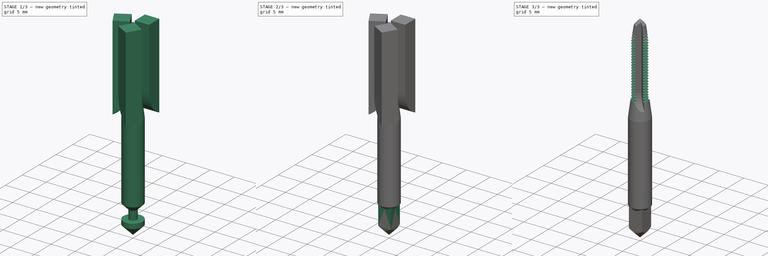
[diagram: build sequence overview — one tinted view per stage of 3, left to right]
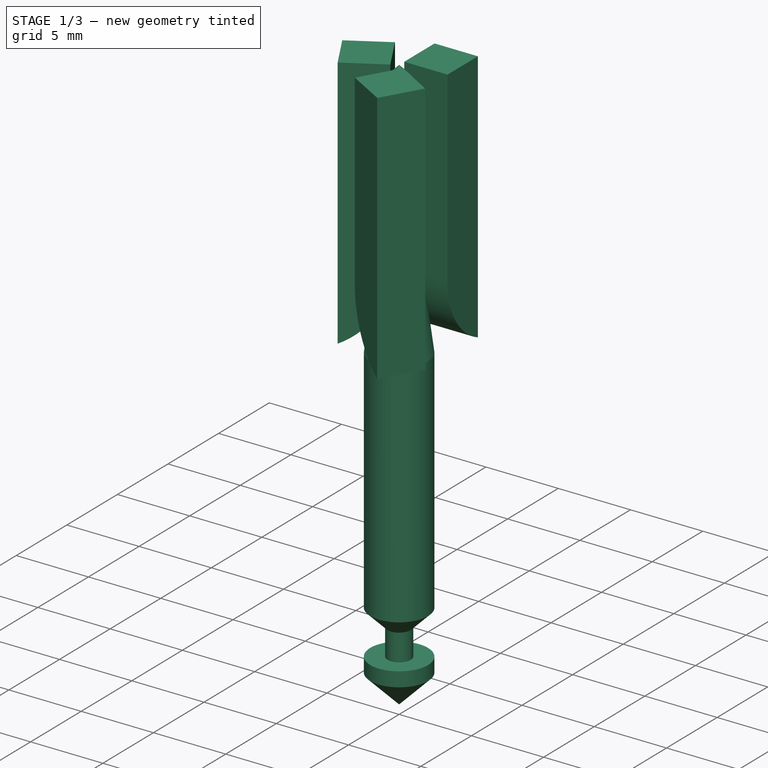
[diagram: stage 1 of 3 — iso view after this stage's code; geometry added in this stage tinted green]
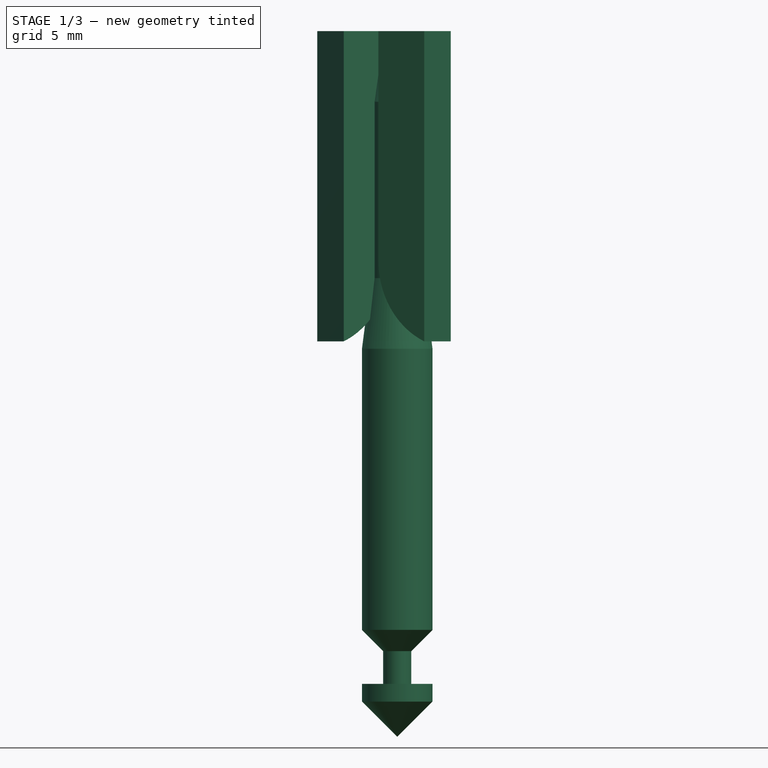
[diagram: stage 1 of 3 — front view after this stage's code; geometry added in this stage tinted green]
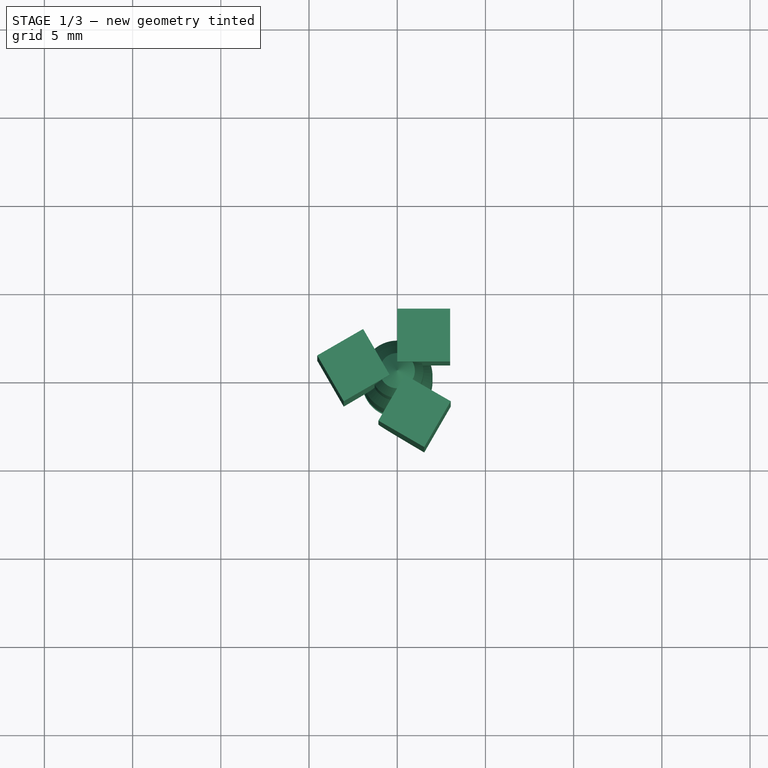
[diagram: stage 1 of 3 — top view after this stage's code; geometry added in this stage tinted green]
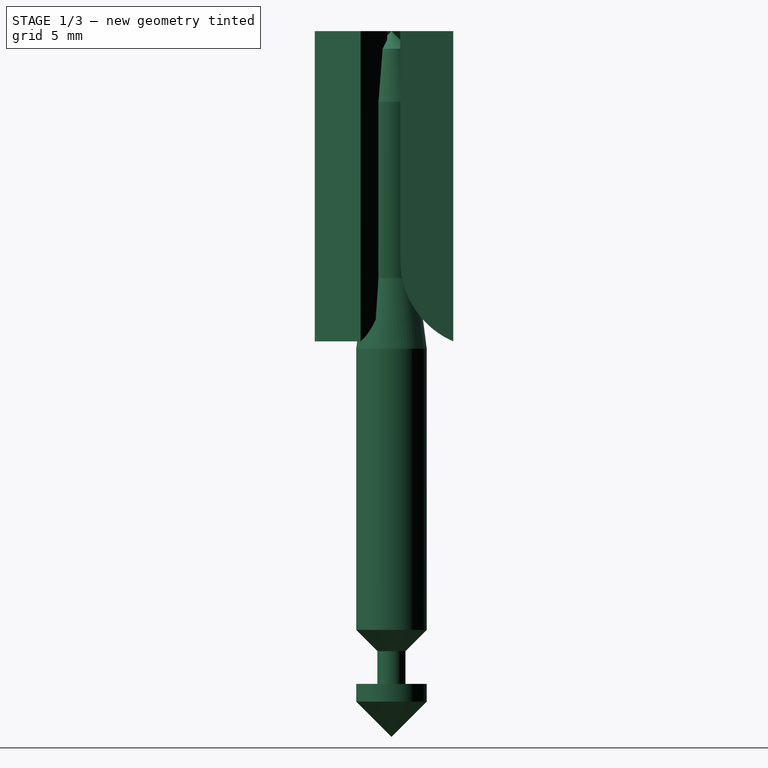
[diagram: stage 1 of 3 — right view after this stage's code; geometry added in this stage tinted green]
FCSTD DOCUMENT  (FreeCAD 0.21R30287 +2 (Git))
Label: M3-Gewindebohrer
License: All rights reserved
LicenseURL: http://en.wikipedia.org/wiki/All_rights_reserved
objects: Sketcher::SketchObject×4, Part::FeaturePython×2, PartDesign::Pad×2, PartDesign::Body×2, PartDesign::Revolution×1, PartDesign::Pocket×1, PartDesign::Boolean×1, Part::Cut×1
note: 17 computed .brp shape members not serialized (recipe doc carries the construction recipe); baked Part::Feature solids carry a one-line shape summary decoded from their .brp

FEATURE [Sketcher::SketchObject] Sketch
  FullyConstrained = false
  MapMode = 5
  Placement = pos=(0,0,0) rot=(0.57735,0.57735,0.57735;2.0944rad)
  Support = -> [YZ_Plane]
  sketch-geometry (11):
    g0: LineSegment StartX=0 StartY=40 StartZ=0 EndX=1 EndY=39 EndZ=0
    g1: LineSegment StartX=1 StartY=39 StartZ=0 EndX=1.48 EndY=36 EndZ=0
    g2: LineSegment StartX=2 StartY=2 StartZ=0 EndX=0 EndY=0 EndZ=0
    g3: LineSegment StartX=0 StartY=0 StartZ=0 EndX=0 EndY=40 EndZ=0
    g4: LineSegment StartX=1.48 StartY=36 StartZ=0 EndX=1.48 EndY=26 EndZ=0
    g5: LineSegment StartX=1.48 StartY=26 StartZ=0 EndX=2 EndY=22 EndZ=0
    g6: LineSegment StartX=2 StartY=22 StartZ=0 EndX=2 EndY=6.06215 EndZ=0
    g7: LineSegment StartX=2 StartY=6.06215 StartZ=0 EndX=0.797259 EndY=4.8594 EndZ=0
    g8: LineSegment StartX=2 StartY=3 StartZ=0 EndX=2 EndY=2 EndZ=0
    g9: LineSegment StartX=0.797259 StartY=4.8594 StartZ=0 EndX=0.797259 EndY=3 EndZ=0
    g10: LineSegment StartX=0.797259 StartY=3 StartZ=0 EndX=2 EndY=3 EndZ=0
  constraints (30):
    c: PointOnObject(g0,g-2)
    c: Coincident(g0,g1)
    c: Coincident(g1,g4)
    c: Coincident(g8,g2)
    c: Coincident(g2,g-1)
    c: Coincident(g2,g3)
    c: Coincident(g3,g0)
    c: DistanceY(g3,g3) = 40
    c: Angle(g3,g0) = 0.785398
    c: DistanceX(g0,g0) = 1
    c: DistanceY(g1,g0) = 4
    c: Coincident(g4,g5)
    c: Vertical(g4)
    c: Coincident(g5,g6)
    c: DistanceX(g2,g4) = 1.48
    c: DistanceY(g4,g4) = 10
    c: DistanceY(g5,g4) = 4
    c: Coincident(g7,g9)
    c: Coincident(g6,g7)
    c: Vertical(g6)
    c: DistanceX(g2,g6) = 2
    c: Angle(g6,g7) = 2.35619
    c: DistanceX(g2,g2) = 2
    c: Vertical(g8)
    c: Coincident(g9,g10)
    c: Vertical(g9)
    c: Horizontal(g10)
    c: DistanceY(g-1,g8) = 3
    c: Coincident(g10,g8)
    c: Parallel(g7,g2)
FEATURE [PartDesign::Revolution] Revolution
  Angle = 360
  Axis = (-2e-16,3e-16,1)
  Base = (0,0,0)
  Placement = pos=(0,0,0) rot=(0.57735,0.57735,0.57735;2.0944rad)
  Profile = -> Sketch
  ReferenceAxis = -> Sketch [V_Axis]
  Refine = true
  Reversed = true
FEATURE [PartDesign::Body] Body
  Group = -> [Sketch,Revolution,Sketch002,Pocket001,Sketch003,Pad,Boolean]
  Origin = -> Origin
  Tip = -> Boolean
FEATURE [Sketcher::SketchObject] Sketch004
  FullyConstrained = true
  MapMode = 5
  Placement = pos=(0,0,0) rot=(0.57735,0.57735,0.57735;2.0944rad)
  Support = -> [YZ_Plane001]
  sketch-geometry (4):
    g0: LineSegment StartX=0.5 StartY=40 StartZ=0 EndX=0.5 EndY=27 EndZ=0
    g1: ArcOfCircle CenterX=5.5 CenterY=27 CenterZ=0 NormalX=0 NormalY=0 NormalZ=1 AngleXU=0 Radius=5 StartAngle=3.14159 EndAngle=4.30087
    g2: LineSegment StartX=3.5 StartY=22.4174 StartZ=0 EndX=3.5 EndY=40 EndZ=0
    g3: LineSegment StartX=3.5 StartY=40 StartZ=0 EndX=0.5 EndY=40 EndZ=0
  constraints (12):
    c: Tangent(g0,g1) = -1.5708
    c: Coincident(g1,g2)
    c: Vertical(g2)
    c: Coincident(g2,g3)
    c: Coincident(g3,g0)
    c: Horizontal(g3)
    c: DistanceY(g-1,g0) = 40
    c: DistanceX(g3,g3) = 3
    c: Radius(g1) = 5
    c: DistanceY(g0,g0) = 13
    c: Vertical(g0)
    c: DistanceX(g-1,g0) = 0.5
FEATURE [PartDesign::Pad] Pad001
  Direction = (1,-2e-16,3e-16)
  Length = 3
  Length2 = 10
  Placement = pos=(0,0,0) rot=(0.57735,0.57735,0.57735;2.0944rad)
  Profile = -> Sketch004
  ReferenceAxis = -> Sketch004 [N_Axis]
  Refine = true
  Type = 0
FEATURE [PartDesign::Body] Body001  label="Ausschnitt"
  Group = -> [Sketch004,Pad001]
  Origin = -> Origin001
  Tip = -> Pad001
FEATURE [Part::FeaturePython] Array  # Draft array (typed FeaturePython)
  AlwaysSyncPlacement = false
  Angle = 360
  ArrayType = 1
  Axis = (0,0,1)
  Base = -> Body001
  Center = (0,0,0)
  Count = 3
  ExpandArray = false
  Fuse = false
  IntervalAxis = (0,0,0)
  IntervalX = (50,0,0)
  IntervalY = (0,50,0)
  IntervalZ = (0,0,50)
  NumberCircles = 3
  NumberPolar = 3
  NumberX = 2
  NumberY = 2
  NumberZ = 1
  PlacementList = 3 placements: [(0,0,0),(0,0,0),(0,0,0)]
  RadialDistance = 50
  ScaleList = (3) [(1,1,1),(1,1,1),(1,1,1)]
  Symmetry = 1
  TangentialDistance = 25
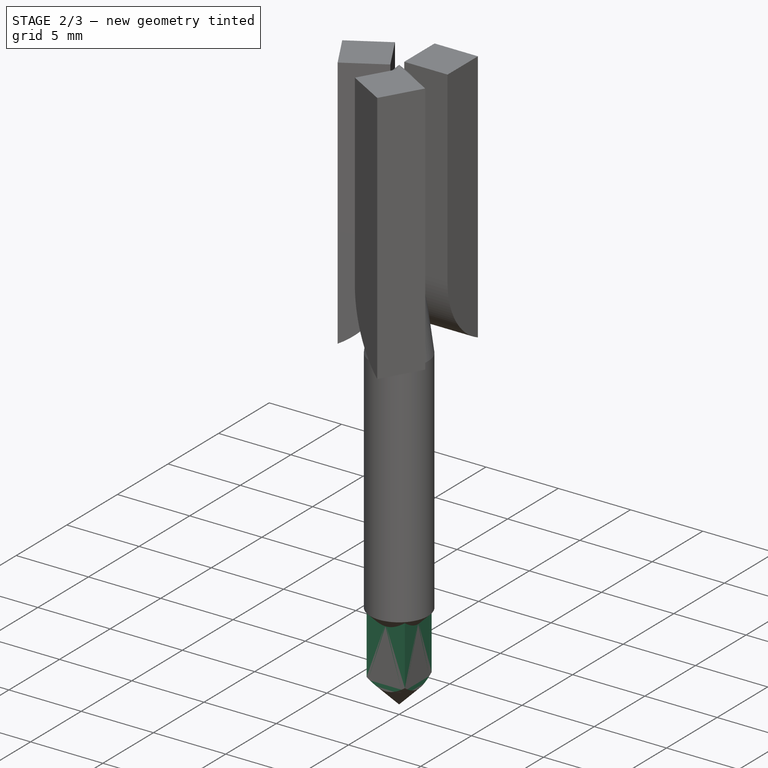
[diagram: stage 2 of 3 — iso view after this stage's code; geometry added in this stage tinted green]
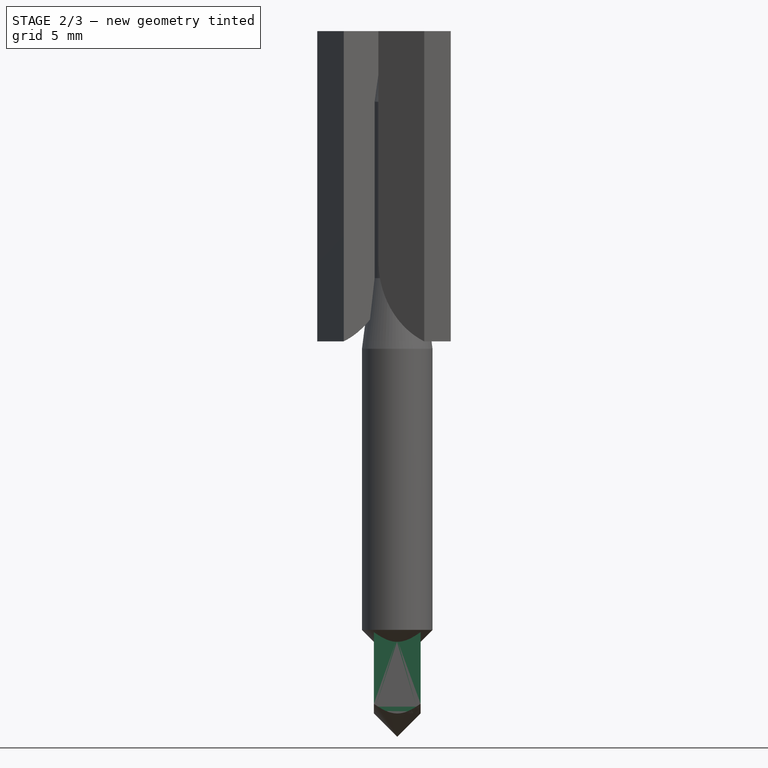
[diagram: stage 2 of 3 — front view after this stage's code; geometry added in this stage tinted green]
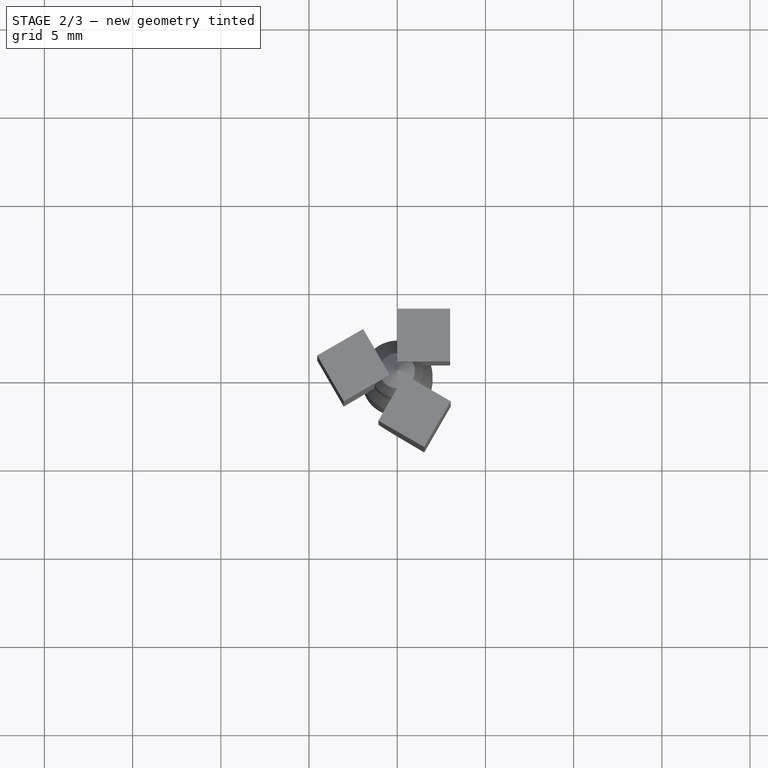
[diagram: stage 2 of 3 — top view after this stage's code; geometry added in this stage tinted green]
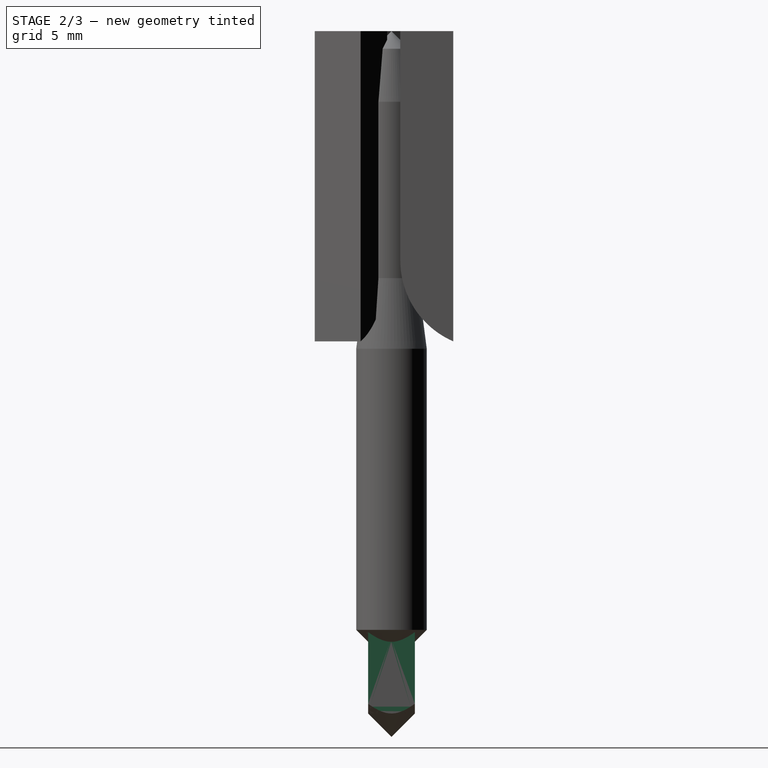
[diagram: stage 2 of 3 — right view after this stage's code; geometry added in this stage tinted green]
FEATURE [Sketcher::SketchObject] Sketch002
  AttachmentOffset = pos=(0,0,3) rot=(0,0,1;0rad)
  FullyConstrained = true
  MapMode = 5
  Placement = pos=(0,0,3) rot=(0,0,1;0rad)
  Support = -> [XY_Plane]
  sketch-geometry (6):
    g0: LineSegment StartX=-1.325 StartY=1.325 StartZ=0 EndX=-1.325 EndY=-1.325 EndZ=0
    g1: LineSegment StartX=-1.325 StartY=-1.325 StartZ=0 EndX=1.325 EndY=-1.325 EndZ=0
    g2: LineSegment StartX=1.325 StartY=-1.325 StartZ=0 EndX=1.325 EndY=1.325 EndZ=0
    g3: LineSegment StartX=1.325 StartY=1.325 StartZ=0 EndX=-1.325 EndY=1.325 EndZ=0
    g4: GeomPoint X=0 Y=0 Z=0
    g5: Circle CenterX=0 CenterY=0 CenterZ=0 NormalX=0 NormalY=0 NormalZ=1 AngleXU=0 Radius=5
  constraints (14):
    c: Coincident(g0,g1)
    c: Coincident(g1,g2)
    c: Coincident(g2,g3)
    c: Coincident(g3,g0)
    c: Horizontal(g1)
    c: Horizontal(g3)
    c: Vertical(g0)
    c: Vertical(g2)
    c: Symmetric(g1,g0,g4)
    c: Coincident(g4,g-1)
    c: Equal(g1,g2)
    c: DistanceX(g1,g1) = 2.65
    c: Coincident(g5,g4)
    c: Diameter(g5) = 10
FEATURE [PartDesign::Pocket] Pocket001
  BaseFeature = -> Revolution
  Direction = (0,0,-1)
  Inverse = false
  Length = 5
  Length2 = 5
  Placement = pos=(0,0,0) rot=(0.57735,0.57735,0.57735;2.0944rad)
  Profile = -> Sketch002
  ReferenceAxis = -> Sketch002 [N_Axis]
  Refine = true
  Type = 0
FEATURE [Sketcher::SketchObject] Sketch003
  AttachmentOffset = pos=(0,0,3) rot=(0,0,1;0rad)
  FullyConstrained = true
  MapMode = 5
  Placement = pos=(0,0,3) rot=(0,0,1;0rad)
  Support = -> [XY_Plane]
  sketch-geometry (5):
    g0: LineSegment StartX=-1.325 StartY=1.325 StartZ=0 EndX=-1.325 EndY=-1.325 EndZ=0
    g1: LineSegment StartX=-1.325 StartY=-1.325 StartZ=0 EndX=1.325 EndY=-1.325 EndZ=0
    g2: LineSegment StartX=1.325 StartY=-1.325 StartZ=0 EndX=1.325 EndY=1.325 EndZ=0
    g3: LineSegment StartX=1.325 StartY=1.325 StartZ=0 EndX=-1.325 EndY=1.325 EndZ=0
    g4: GeomPoint X=0 Y=0 Z=0
  constraints (12):
    c: Coincident(g0,g1)
    c: Coincident(g1,g2)
    c: Coincident(g2,g3)
    c: Coincident(g3,g0)
    c: Horizontal(g1)
    c: Horizontal(g3)
    c: Vertical(g0)
    c: Vertical(g2)
    c: Symmetric(g1,g0,g4)
    c: Coincident(g4,g-1)
    c: Equal(g2,g1)
    c: DistanceX(g1,g1) = 2.65
FEATURE [PartDesign::Pad] Pad
  BaseFeature = -> Pocket001
  Direction = (0,0,1)
  Length = 10
  Length2 = 10
  Placement = pos=(0,0,0) rot=(0.57735,0.57735,0.57735;2.0944rad)
  Profile = -> Sketch003
  ReferenceAxis = -> Sketch003 [N_Axis]
  Refine = true
  Type = 0
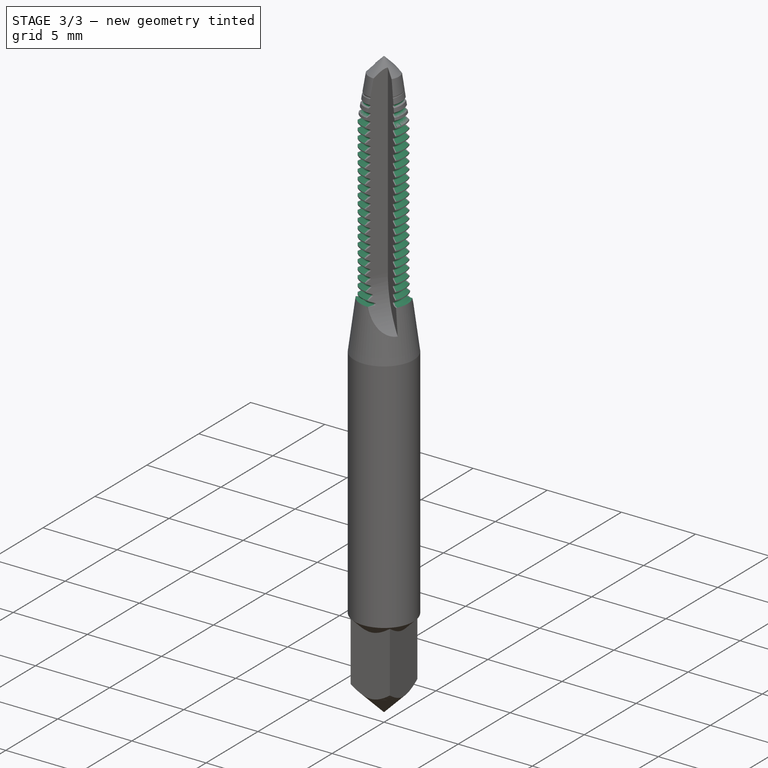
[diagram: stage 3 of 3 — iso view after this stage's code; geometry added in this stage tinted green]
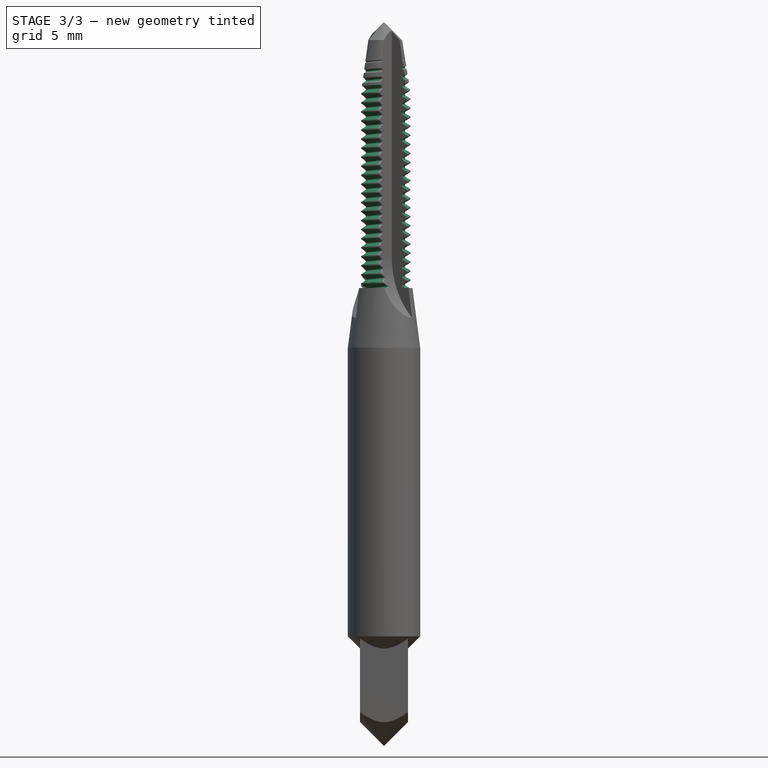
[diagram: stage 3 of 3 — front view after this stage's code; geometry added in this stage tinted green]
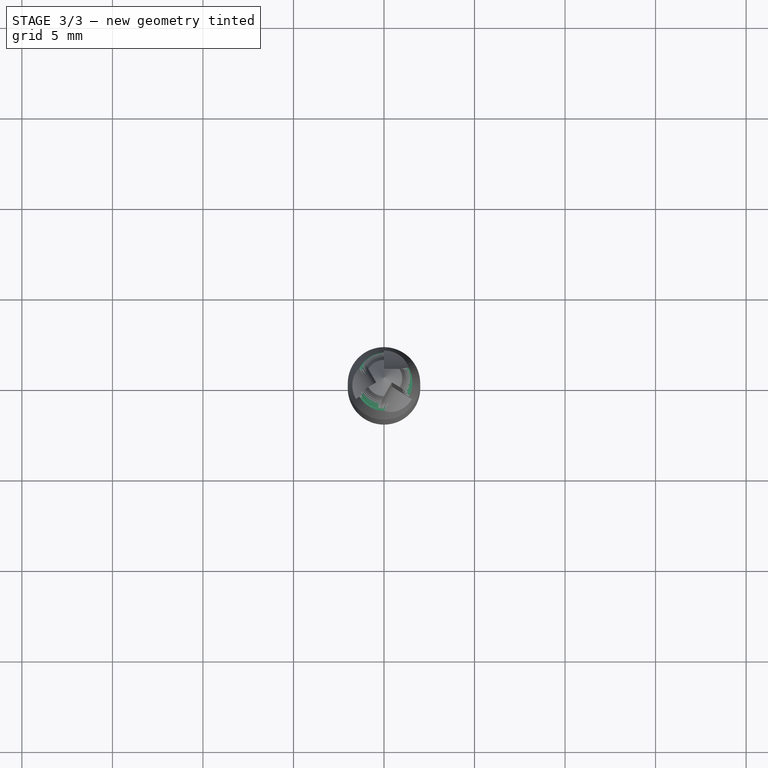
[diagram: stage 3 of 3 — top view after this stage's code; geometry added in this stage tinted green]
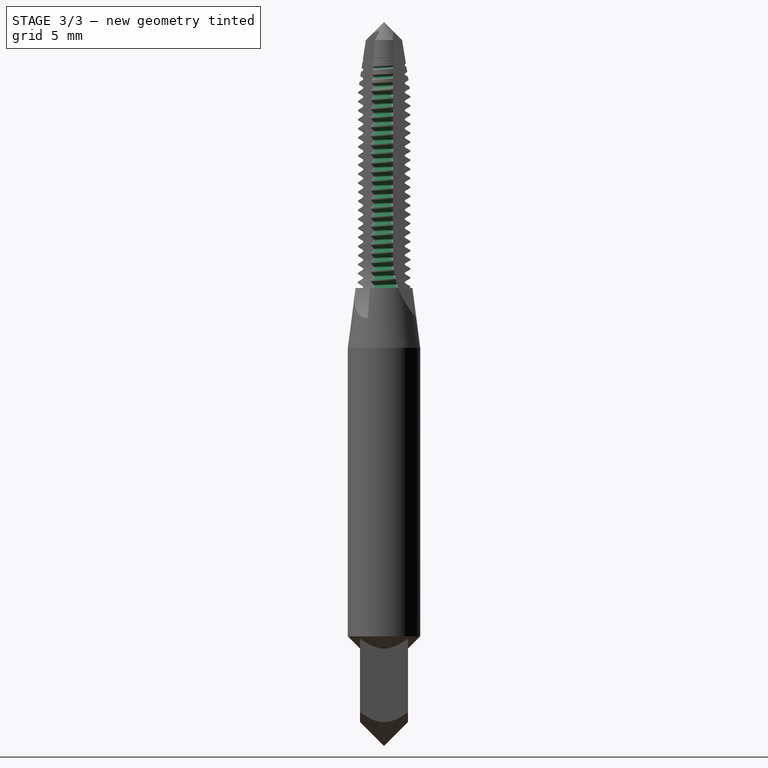
[diagram: stage 3 of 3 — right view after this stage's code; geometry added in this stage tinted green]
FEATURE [Part::FeaturePython] ScrewDie  label="M3x18-ScrewDie"  # Fasteners workbench fastener (typed FeaturePython)
  Placement = pos=(0,0,43.3) rot=(0,0,1;0rad)
  diameter = 4
  diameterCustom = 6
  invert = false
  leftHanded = false
  length = 18
  matchOuter = false
  offset = 0
  pitchCustom = 1
  thread = true
  type = 0
FEATURE [PartDesign::Boolean] Boolean
  BaseFeature = -> Pad
  Group = -> [ScrewDie]
  Refine = true
  Type = 1
FEATURE [Part::Cut] Cut
  Base = -> Body
  Refine = true
  Tool = -> Array
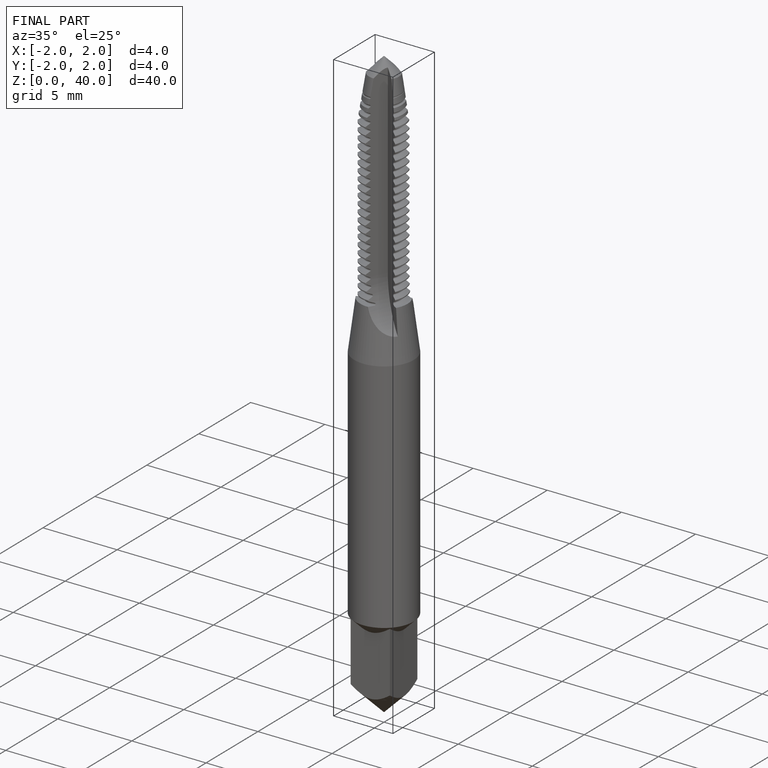
[diagram: finished part — iso view with bounding-box wireframe]
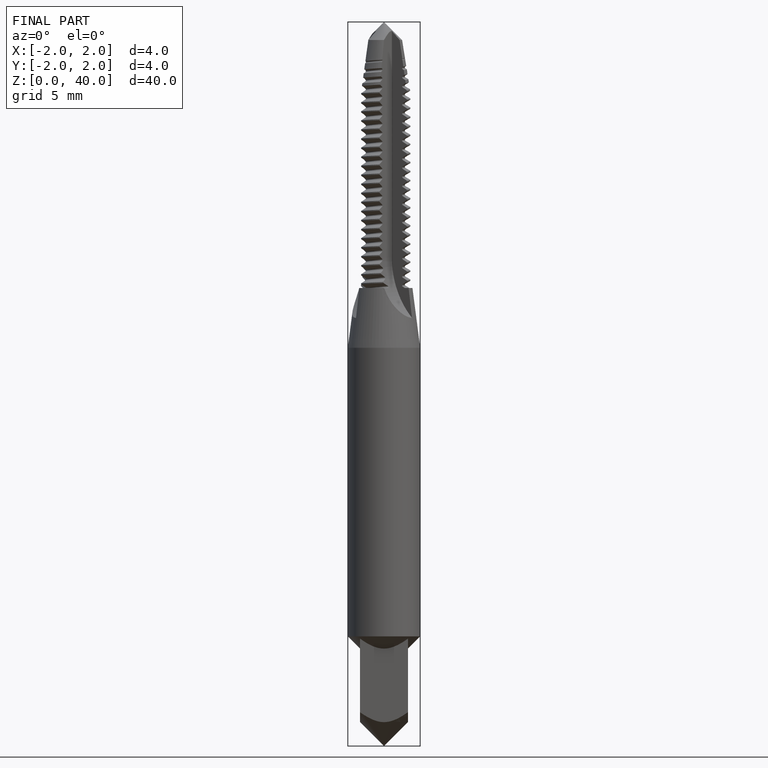
[diagram: finished part — front view with bounding-box wireframe]
